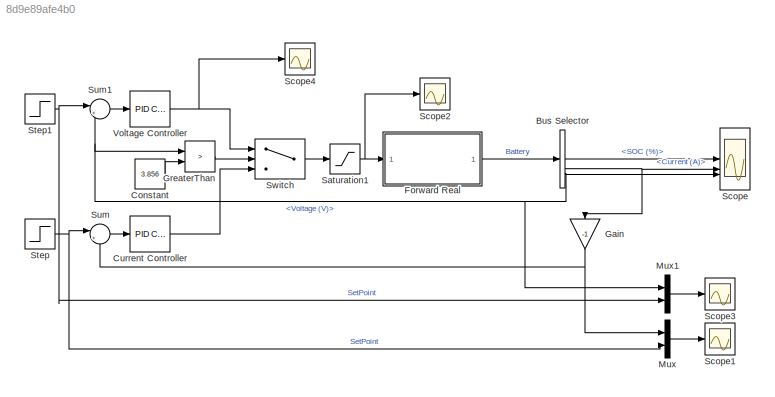
MODEL slx_8d9e89afe4b0
KIND model
CONFIG AbsTol = auto
CONFIG EnableMultiTasking = on
CONFIG FixedStep = auto
CONFIG MaxStep = 1e-4
CONFIG MinStep = auto
CONFIG RelTol = 1e-4
CONFIG SampleTimeConstraint = Unconstrained
CONFIG SolverName = ode23tb
CONFIG StartTime = 0.0
CONFIG StopTime = 6
BLOCK [BusSelector] Bus Selector
  OutputSignals = SOC (%),Current (A),Voltage (V)
BLOCK [Constant] Constant
  Value = 3.856
  VectorParams1D = off
BLOCK [Reference] Current Controller  REF=slpidlib/PID Controller
  LibrarySourceBlock = simulink/Continuous/PID Controller
  SourceBlock = slpidlib/PID Controller
  SourceType = PID 1dof
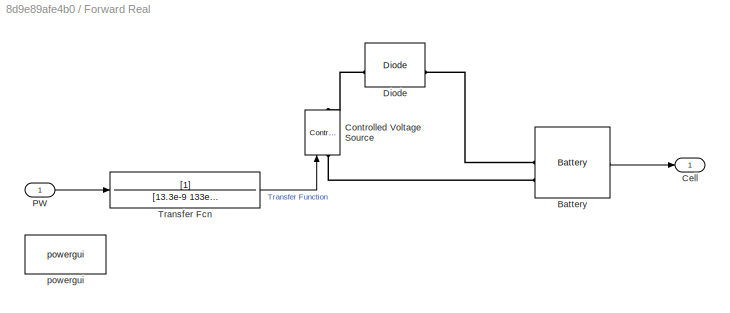
BLOCK [SubSystem] Forward Real
BLOCK [Reference] Forward Real/Battery  REF=spsBatteryLib/Battery
  LibrarySourceBlock = sps_lib/Sources/Battery
  SourceBlock = spsBatteryLib/Battery
  SourceType = Battery
BLOCK [Outport] Forward Real/Cell
BLOCK [Reference] Forward Real/Controlled Voltage Source  REF=spsControlledVoltageSourceLib/Controlled Voltage Source
  LibrarySourceBlock = sps_lib/Sources/Controlled Voltage Source
  SourceBlock = spsControlledVoltageSourceLib/Controlled Voltage Source
  SourceType = Controlled Voltage Source
BLOCK [Reference] Forward Real/Diode  REF=spsDiodeLib/Diode
  LibrarySourceBlock = sps_lib/Power Electronics/Diode
  SourceBlock = spsDiodeLib/Diode
  SourceType = Diode
BLOCK [Inport] Forward Real/PW
BLOCK [TransferFcn] Forward Real/Transfer Fcn
  Denominator = [13.3e-9 133e-6 1]
BLOCK [Reference] Forward Real/powergui  REF=sps_lib/powergui
  LibrarySourceBlock = sps_lib/powergui
  Priority = 1
  SourceBlock = sps_lib/powergui
  SourceType = PSB option menu block
BLOCK [Gain] Gain
  Gain = -1
  NameLocation = right
BLOCK [RelationalOperator] GreaterThan
  InputSameDT = off
  Operator = >
  OutDataTypeStr = boolean
  RndMeth = Simplest
  ZeroCross = off
BLOCK [Mux] Mux
  DisplayOption = bar
  Inputs = 2
BLOCK [Mux] Mux1
  DisplayOption = bar
  Inputs = 2
BLOCK [Saturate] Saturation1
  LowerLimit = 0
  UpperLimit = 24
BLOCK [Scope] Scope
  Floating = off
  NumInputPorts = 3
  ScopeSpecificationString = Simulink.scopes.TimeScopeBlockCfg('CurrentConfiguration', extmgr.ConfigurationSet(extmgr.Configuration('Core','General UI',true,'FigureColor',[1 1 1]),extmgr.Configuration('Core','Source UI',true),extmgr.Configuration('Sources','WiredSimulink',true),extmgr.Configuration('Visuals','Time Domain',true,'SerializedDisplays',{struct('MinYLimReal','99.79528','MaxYLimReal','99.84247','YLabelReal','','MinY...<+3127ch>
BLOCK [Scope] Scope1
  Floating = off
  NumInputPorts = 1
  ScopeSpecificationString = Simulink.scopes.TimeScopeBlockCfg('CurrentConfiguration', extmgr.ConfigurationSet(extmgr.Configuration('Core','General UI',true),extmgr.Configuration('Core','Source UI',true),extmgr.Configuration('Sources','WiredSimulink',true,'DataLoggingVariableName','ScopeData1'),extmgr.Configuration('Visuals','Time Domain',true,'SerializedDisplays',{struct('MinYLimReal','-0.93958','MaxYLimReal','8.45625','YLab...<+1478ch>
BLOCK [Scope] Scope2
  Floating = off
  NumInputPorts = 1
  ScopeSpecificationString = Simulink.scopes.TimeScopeBlockCfg('CurrentConfiguration', extmgr.ConfigurationSet(extmgr.Configuration('Core','General UI',true),extmgr.Configuration('Core','Source UI',true),extmgr.Configuration('Sources','WiredSimulink',true,'DataLoggingVariableName','ScopeData2'),extmgr.Configuration('Visuals','Time Domain',true,'SerializedDisplays',{struct('MinYLimReal','-0.56319','MaxYLimReal','5.06875','YLab...<+1416ch>
BLOCK [Scope] Scope3
  Floating = off
  NumInputPorts = 1
  ScopeSpecificationString = Simulink.scopes.TimeScopeBlockCfg('CurrentConfiguration', extmgr.ConfigurationSet(extmgr.Configuration('Core','General UI',true),extmgr.Configuration('Core','Source UI',true),extmgr.Configuration('Sources','WiredSimulink',true,'DataLoggingVariableName','ScopeData1'),extmgr.Configuration('Visuals','Time Domain',true,'SerializedDisplays',{struct('MinYLimReal','3.79259','MaxYLimReal','4.10266','YLabe...<+1460ch>
BLOCK [Scope] Scope4
  Floating = off
  NumInputPorts = 1
  ScopeSpecificationString = Simulink.scopes.TimeScopeBlockCfg('CurrentConfiguration', extmgr.ConfigurationSet(extmgr.Configuration('Core','General UI',true),extmgr.Configuration('Core','Source UI',true),extmgr.Configuration('Sources','WiredSimulink',true,'DataLoggingVariableName','ScopeData1'),extmgr.Configuration('Visuals','Time Domain',true,'SerializedDisplays',{struct('MinYLimReal','-4.85826','MaxYLimReal','5.24418','YLab...<+1423ch>
BLOCK [Step] Step
  After = 0.3
  SampleTime = 0
  Time = 0
BLOCK [Step] Step1
  After = 3.856
  SampleTime = 0
  Time = 0
BLOCK [Sum] Sum
  Inputs = |+-
BLOCK [Sum] Sum1
  Inputs = |+-
BLOCK [Switch] Switch
  Criteria = u2 > Threshold
  InputSameDT = off
  SaturateOnIntegerOverflow = off
BLOCK [Reference] Voltage Controller  REF=slpidlib/PID Controller
  LibrarySourceBlock = simulink/Continuous/PID Controller
  SourceBlock = slpidlib/PID Controller
  SourceType = PID 1dof
LINE Bus Selector:1 -> Scope:1
NET Bus Selector:2 -> Gain:1, Scope:2
NET Bus Selector:3 -> GreaterThan:1, Mux1:1, Scope:3, Sum1:2
LINE Constant:1 -> GreaterThan:2
LINE Current Controller:1 -> Switch:3
LINE Forward Real/Battery:1 -> Forward Real/Cell:1
LINE Forward Real/PW:1 -> Forward Real/Transfer Fcn:1
LINE Forward Real/Transfer Fcn:1 -> Forward Real/Controlled Voltage Source:1
LINE Forward Real:1 -> Bus Selector:1
NET Gain:1 -> Mux:1, Sum:2
LINE GreaterThan:1 -> Switch:2
LINE Mux1:1 -> Scope3:1
LINE Mux:1 -> Scope1:1
NET Saturation1:1 -> Forward Real:1, Scope2:1
NET Step1:1 -> Mux1:2, Sum1:1
NET Step:1 -> Mux:2, Sum:1
LINE Sum1:1 -> Voltage Controller:1
LINE Sum:1 -> Current Controller:1
LINE Switch:1 -> Saturation1:1
NET Voltage Controller:1 -> Scope4:1, Switch:1
PLINE Forward Real/Battery:LConn1 -- Forward Real/Diode:RConn1
PLINE Forward Real/Battery:LConn2 -- Forward Real/Controlled Voltage Source:LConn1
PLINE Forward Real/Controlled Voltage Source:RConn1 -- Forward Real/Diode:LConn1
note: NET lines group one-source signal fan-out (src -> all destinations, sorted); 1:1 wires keep LINE
